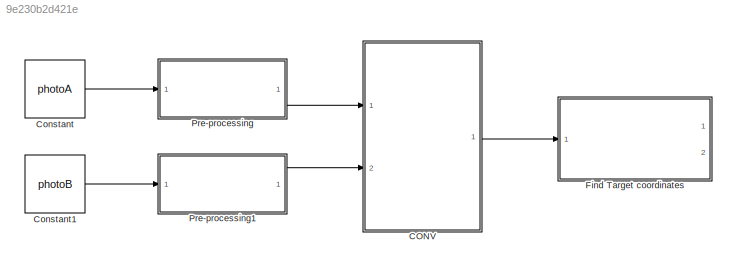
MODEL slx_9e230b2d421e
KIND model
CONFIG AbsTol = auto
CONFIG EnableMultiTasking = off
CONFIG FixedStep = auto
CONFIG MaxStep = auto
CONFIG MinStep = auto
CONFIG RelTol = 1e-3
CONFIG SampleTimeConstraint = Unconstrained
CONFIG SolverName = VariableStepAuto
CONFIG StartTime = 0.0
CONFIG StopTime = 1.0
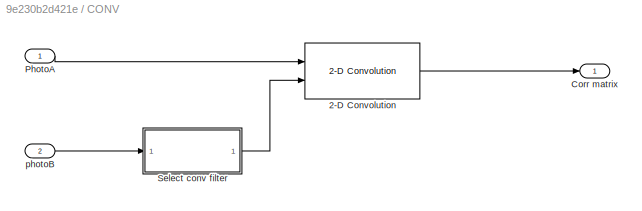
BLOCK [SubSystem] CONV
  Ports = [2, 1]
  RequestExecContextInheritance = off
BLOCK [Reference] CONV/2-D Convolution  REF=visionfilter/2-D Convolution
  Ports = [2, 1]
  SourceBlock = visionfilter/2-D Convolution
  SourceProductBaseCode = VP
  SourceType = 2-D Convolution
BLOCK [Outport] CONV/Corr matrix
BLOCK [Inport] CONV/PhotoA
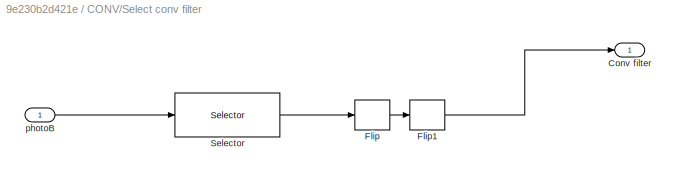
BLOCK [SubSystem] CONV/Select conv filter
  Ports = [1, 1]
  RequestExecContextInheritance = off
BLOCK [Outport] CONV/Select conv filter/Conv filter
BLOCK [DSPFlip] CONV/Select conv filter/Flip
BLOCK [DSPFlip] CONV/Select conv filter/Flip1
  dim = Rows
BLOCK [Selector] CONV/Select conv filter/Selector
  IndexOptions = Index vector (dialog),Index vector (dialog)
  Indices = [1:conv_len],[1:conv_len]
  InputPortWidth = 3
  NumberOfDimensions = 2
  OutputSizes = 1,1
  Ports = [1, 1]
BLOCK [Inport] CONV/Select conv filter/photoB
BLOCK [Inport] CONV/photoB
  Port = 2
BLOCK [Constant] Constant
  Value = photoA
  VectorParams1D = off
BLOCK [Constant] Constant1
  Value = photoB
  VectorParams1D = off
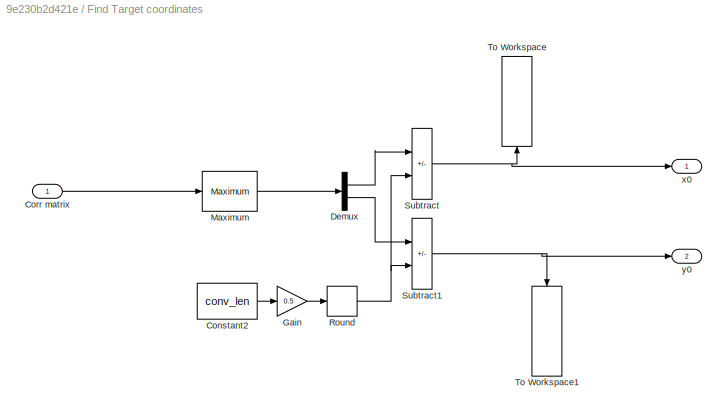
BLOCK [SubSystem] Find Target coordinates
  Ports = [1, 2]
  RequestExecContextInheritance = off
BLOCK [Constant] Find Target coordinates/Constant2
  Value = conv_len
BLOCK [Inport] Find Target coordinates/Corr matrix
BLOCK [Demux] Find Target coordinates/Demux
  Outputs = 2
  Ports = [1, 2]
BLOCK [Gain] Find Target coordinates/Gain
  Gain = 0.5
BLOCK [Reference] Find Target coordinates/Maximum  REF=dspstat3/Maximum
  Ports = [1, 1]
  SourceBlock = dspstat3/Maximum
  SourceProductBaseCode = DS
  SourceType = Maximum
  UserDataPersistent = on
BLOCK [Rounding] Find Target coordinates/Round
  Operator = round
BLOCK [Sum] Find Target coordinates/Subtract
  IconShape = rectangular
  Inputs = +-
  Ports = [2, 1]
BLOCK [Sum] Find Target coordinates/Subtract1
  IconShape = rectangular
  Inputs = +-
  Ports = [2, 1]
BLOCK [ToWorkspace] Find Target coordinates/To Workspace
  FixptAsFi = on
  MaxDataPoints = inf
  NameLocation = right
  Ports = [1]
  SampleTime = -1
  VariableName = x0
BLOCK [ToWorkspace] Find Target coordinates/To Workspace1
  FixptAsFi = on
  MaxDataPoints = inf
  NameLocation = left
  Ports = [1]
  SampleTime = -1
  VariableName = y0
BLOCK [Outport] Find Target coordinates/x0
BLOCK [Outport] Find Target coordinates/y0
  Port = 2
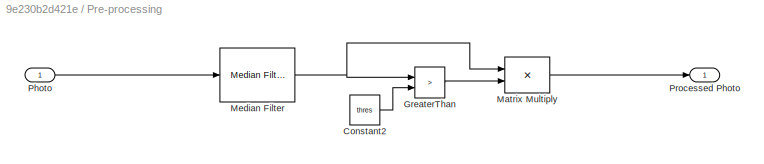
BLOCK [SubSystem] Pre-processing
  Ports = [1, 1]
  RequestExecContextInheritance = off
BLOCK [Constant] Pre-processing/Constant2
  Value = thres
BLOCK [RelationalOperator] Pre-processing/GreaterThan
  InputSameDT = off
  Operator = >
  OutDataTypeStr = boolean
  Ports = [2, 1]
  RndMeth = Simplest
BLOCK [Product] Pre-processing/Matrix Multiply
  Ports = [2, 1]
BLOCK [Reference] Pre-processing/Median Filter  REF=visionanalysis/Median Filter
  Ports = [1, 1]
  SourceBlock = visionanalysis/Median Filter
  SourceProductBaseCode = VP
  SourceType = Median Filter
BLOCK [Inport] Pre-processing/Photo
BLOCK [Outport] Pre-processing/Processed Photo
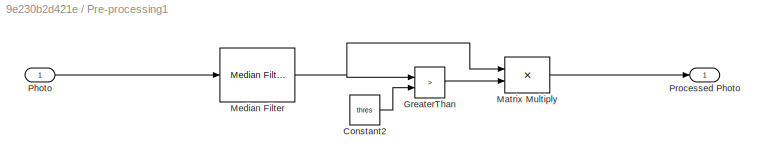
BLOCK [SubSystem] Pre-processing1
  Ports = [1, 1]
  RequestExecContextInheritance = off
BLOCK [Constant] Pre-processing1/Constant2
  Value = thres
BLOCK [RelationalOperator] Pre-processing1/GreaterThan
  InputSameDT = off
  Operator = >
  OutDataTypeStr = boolean
  Ports = [2, 1]
  RndMeth = Simplest
BLOCK [Product] Pre-processing1/Matrix Multiply
  Ports = [2, 1]
BLOCK [Reference] Pre-processing1/Median Filter  REF=visionanalysis/Median Filter
  Ports = [1, 1]
  SourceBlock = visionanalysis/Median Filter
  SourceProductBaseCode = VP
  SourceType = Median Filter
BLOCK [Inport] Pre-processing1/Photo
BLOCK [Outport] Pre-processing1/Processed Photo
LINE CONV/2-D Convolution:1 -> CONV/Corr matrix:1
LINE CONV/PhotoA:1 -> CONV/2-D Convolution:1
LINE CONV/Select conv filter/Flip1:1 -> CONV/Select conv filter/Conv filter:1
LINE CONV/Select conv filter/Flip:1 -> CONV/Select conv filter/Flip1:1
LINE CONV/Select conv filter/Selector:1 -> CONV/Select conv filter/Flip:1
LINE CONV/Select conv filter/photoB:1 -> CONV/Select conv filter/Selector:1
LINE CONV/Select conv filter:1 -> CONV/2-D Convolution:2
LINE CONV/photoB:1 -> CONV/Select conv filter:1
LINE CONV:1 -> Find Target coordinates:1
LINE Constant1:1 -> Pre-processing1:1
LINE Constant:1 -> Pre-processing:1
LINE Find Target coordinates/Constant2:1 -> Find Target coordinates/Gain:1
LINE Find Target coordinates/Corr matrix:1 -> Find Target coordinates/Maximum:1
LINE Find Target coordinates/Demux:1 -> Find Target coordinates/Subtract:1
LINE Find Target coordinates/Demux:2 -> Find Target coordinates/Subtract1:1
LINE Find Target coordinates/Gain:1 -> Find Target coordinates/Round:1
LINE Find Target coordinates/Maximum:1 -> Find Target coordinates/Demux:1
NET Find Target coordinates/Round:1 -> Find Target coordinates/Subtract1:2, Find Target coordinates/Subtract:2
NET Find Target coordinates/Subtract1:1 -> Find Target coordinates/To Workspace1:1, Find Target coordinates/y0:1
NET Find Target coordinates/Subtract:1 -> Find Target coordinates/To Workspace:1, Find Target coordinates/x0:1
LINE Pre-processing/Constant2:1 -> Pre-processing/GreaterThan:2
LINE Pre-processing/GreaterThan:1 -> Pre-processing/Matrix Multiply:2
LINE Pre-processing/Matrix Multiply:1 -> Pre-processing/Processed Photo:1
NET Pre-processing/Median Filter:1 -> Pre-processing/GreaterThan:1, Pre-processing/Matrix Multiply:1
LINE Pre-processing/Photo:1 -> Pre-processing/Median Filter:1
LINE Pre-processing1/Constant2:1 -> Pre-processing1/GreaterThan:2
LINE Pre-processing1/GreaterThan:1 -> Pre-processing1/Matrix Multiply:2
LINE Pre-processing1/Matrix Multiply:1 -> Pre-processing1/Processed Photo:1
NET Pre-processing1/Median Filter:1 -> Pre-processing1/GreaterThan:1, Pre-processing1/Matrix Multiply:1
LINE Pre-processing1/Photo:1 -> Pre-processing1/Median Filter:1
LINE Pre-processing1:1 -> CONV:2
LINE Pre-processing:1 -> CONV:1
note: NET lines group one-source signal fan-out (src -> all destinations, sorted); 1:1 wires keep LINE
